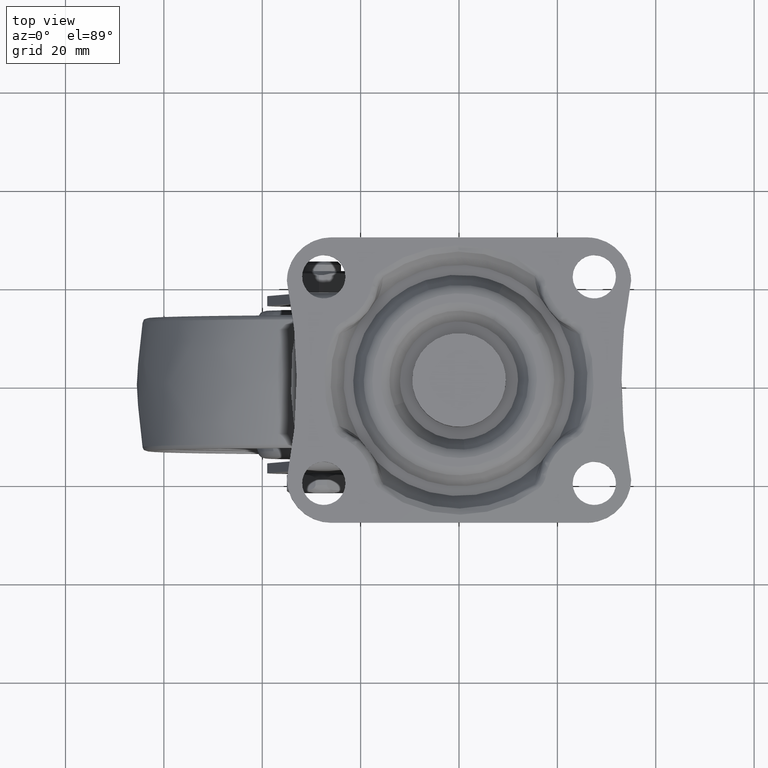
[diagram: clean part render]
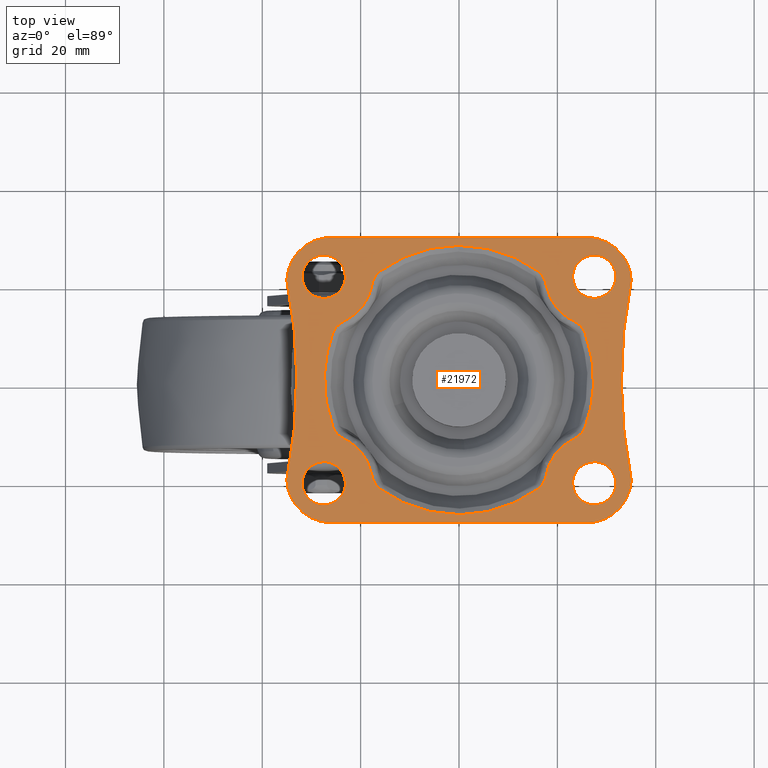
[diagram: same view with one face highlighted and labeled with its STEP entity id]
A machine part, top view. The second image highlights one B-rep face of the part: STEP entity #21972.
In plain terms, the highlighted face is a freeform B-spline surface patch.
Its self-contained STEP definition (entity closure, byte-faithful):
#10020=CARTESIAN_POINT('',(-26.953836778245702,16.634028559964811,-1.450307E-017));
#10021=VERTEX_POINT('',#10020);
#10027=CARTESIAN_POINT('',(-23.099999900000000,21.0,0.0));
#10028=VERTEX_POINT('',#10027);
#10029=CARTESIAN_POINT('',(-26.953836778245702,16.634028559964808,-1.450307E-017));
#10030=CARTESIAN_POINT('',(-23.099999900000007,17.116126071410257,0.0));
#10031=CARTESIAN_POINT('',(-23.099999900000000,21.0,0.0));
#10039=(BOUNDED_CURVE()B_SPLINE_CURVE(2,(#10029,#10030,#10031),.UNSPECIFIED.,.F.,.U.)B_SPLINE_CURVE_WITH_KNOTS((3,3),(0.271473928985399,0.500000000000000),.UNSPECIFIED.)CURVE()GEOMETRIC_REPRESENTATION_ITEM()RATIONAL_B_SPLINE_CURVE((0.954005430246196,0.732265053910968,1.0))REPRESENTATION_ITEM(''));
#10040=EDGE_CURVE('',#10021,#10028,#10039,.T.);
#10042=CARTESIAN_POINT('',(-27.538396757451370,25.399832561475179,-1.040834E-017));
#10043=VERTEX_POINT('',#10042);
#10044=CARTESIAN_POINT('',(-23.099999900000000,21.0,0.0));
#10045=CARTESIAN_POINT('',(-23.099999900000011,25.400000099999993,0.0));
#10046=CARTESIAN_POINT('',(-27.500000000000000,25.400000100000000,0.0));
#10047=CARTESIAN_POINT('',(-27.519198744433332,25.400000099999993,0.0));
#10048=CARTESIAN_POINT('',(-27.538396757451373,25.399832561475179,-1.040834E-017));
#10056=(BOUNDED_CURVE()B_SPLINE_CURVE(2,(#10044,#10045,#10046,#10047,#10048),.UNSPECIFIED.,.F.,.U.)B_SPLINE_CURVE_WITH_KNOTS((3,2,3),(0.500000000000000,0.750000000000000,0.751539894365884),.UNSPECIFIED.)CURVE()GEOMETRIC_REPRESENTATION_ITEM()RATIONAL_B_SPLINE_CURVE((1.0,0.707106781186548,1.0,0.998195901530174,0.996414028028901))REPRESENTATION_ITEM(''));
#10057=EDGE_CURVE('',#10028,#10043,#10056,.T.);
#10137=CARTESIAN_POINT('',(-31.900000099999989,21.0,0.0));
#10138=VERTEX_POINT('',#10137);
#10139=CARTESIAN_POINT('',(-27.538396757451373,25.399832561475176,-1.040834E-017));
#10140=CARTESIAN_POINT('',(-31.900000099999989,25.361769424983923,0.0));
#10141=CARTESIAN_POINT('',(-31.900000099999989,21.0,0.0));
#10149=(BOUNDED_CURVE()B_SPLINE_CURVE(2,(#10139,#10140,#10141),.UNSPECIFIED.,.F.,.U.)B_SPLINE_CURVE_WITH_KNOTS((3,3),(0.751539894365883,1.0),.UNSPECIFIED.)CURVE()GEOMETRIC_REPRESENTATION_ITEM()RATIONAL_B_SPLINE_CURVE((0.996414028028903,0.708910879656373,1.0))REPRESENTATION_ITEM(''));
#10150=EDGE_CURVE('',#10043,#10138,#10149,.T.);
#10152=CARTESIAN_POINT('',(-31.900000099999989,21.0,0.0));
#10153=CARTESIAN_POINT('',(-31.900000099999993,16.599999900000011,0.0));
#10154=CARTESIAN_POINT('',(-27.500000000000000,16.599999900000011,0.0));
#10155=CARTESIAN_POINT('',(-27.225858312429651,16.599999900000014,0.0));
#10156=CARTESIAN_POINT('',(-26.953836778245702,16.634028559964808,-1.450307E-017));
#10164=(BOUNDED_CURVE()B_SPLINE_CURVE(2,(#10152,#10153,#10154,#10155,#10156),.UNSPECIFIED.,.F.,.U.)B_SPLINE_CURVE_WITH_KNOTS((3,2,3),(0.0,0.250000000000000,0.271473928985399),.UNSPECIFIED.)CURVE()GEOMETRIC_REPRESENTATION_ITEM()RATIONAL_B_SPLINE_CURVE((1.0,0.707106781186548,1.0,0.974841727275580,0.954005430246196))REPRESENTATION_ITEM(''));
#10165=EDGE_CURVE('',#10138,#10021,#10164,.T.);
#10206=CARTESIAN_POINT('',(28.046153221754299,16.634028559964818,-1.450307E-017));
#10207=VERTEX_POINT('',#10206);
#10213=CARTESIAN_POINT('',(31.899990099999989,21.0,0.0));
#10214=VERTEX_POINT('',#10213);
#10215=CARTESIAN_POINT('',(28.046153221754299,16.634028559964811,-1.450307E-017));
#10216=CARTESIAN_POINT('',(31.899990099999993,17.116126071410271,0.0));
#10217=CARTESIAN_POINT('',(31.899990099999989,21.0,0.0));
#10225=(BOUNDED_CURVE()B_SPLINE_CURVE(2,(#10215,#10216,#10217),.UNSPECIFIED.,.F.,.U.)B_SPLINE_CURVE_WITH_KNOTS((3,3),(0.271473928985399,0.500000000000000),.UNSPECIFIED.)CURVE()GEOMETRIC_REPRESENTATION_ITEM()RATIONAL_B_SPLINE_CURVE((0.954005430246196,0.732265053910968,1.0))REPRESENTATION_ITEM(''));
#10226=EDGE_CURVE('',#10207,#10214,#10225,.T.);
#10228=CARTESIAN_POINT('',(27.461593242548620,25.399832561475169,-1.040834E-017));
#10229=VERTEX_POINT('',#10228);
#10230=CARTESIAN_POINT('',(31.899990099999989,21.0,0.0));
#10231=CARTESIAN_POINT('',(31.899990099999997,25.400000099999993,0.0));
#10232=CARTESIAN_POINT('',(27.499990000000000,25.400000100000000,0.0));
#10233=CARTESIAN_POINT('',(27.480791255566668,25.400000099999993,0.0));
#10234=CARTESIAN_POINT('',(27.461593242548624,25.399832561475172,-1.040834E-017));
#10242=(BOUNDED_CURVE()B_SPLINE_CURVE(2,(#10230,#10231,#10232,#10233,#10234),.UNSPECIFIED.,.F.,.U.)B_SPLINE_CURVE_WITH_KNOTS((3,2,3),(0.500000000000000,0.750000000000000,0.751539894365884),.UNSPECIFIED.)CURVE()GEOMETRIC_REPRESENTATION_ITEM()RATIONAL_B_SPLINE_CURVE((1.0,0.707106781186548,1.0,0.998195901530174,0.996414028028901))REPRESENTATION_ITEM(''));
#10243=EDGE_CURVE('',#10214,#10229,#10242,.T.);
#10323=CARTESIAN_POINT('',(23.099989900000001,21.0,0.0));
#10324=VERTEX_POINT('',#10323);
#10325=CARTESIAN_POINT('',(27.461593242548627,25.399832561475176,-1.040834E-017));
#10326=CARTESIAN_POINT('',(23.099989899999990,25.361769424983908,0.0));
#10327=CARTESIAN_POINT('',(23.099989900000001,21.0,0.0));
#10335=(BOUNDED_CURVE()B_SPLINE_CURVE(2,(#10325,#10326,#10327),.UNSPECIFIED.,.F.,.U.)B_SPLINE_CURVE_WITH_KNOTS((3,3),(0.751539894365883,1.0),.UNSPECIFIED.)CURVE()GEOMETRIC_REPRESENTATION_ITEM()RATIONAL_B_SPLINE_CURVE((0.996414028028903,0.708910879656373,1.0))REPRESENTATION_ITEM(''));
#10336=EDGE_CURVE('',#10229,#10324,#10335,.T.);
#10338=CARTESIAN_POINT('',(23.099989900000001,21.0,0.0));
#10339=CARTESIAN_POINT('',(23.099989900000004,16.599999900000011,0.0));
#10340=CARTESIAN_POINT('',(27.499990000000000,16.599999900000011,0.0));
#10341=CARTESIAN_POINT('',(27.774131687570346,16.599999900000011,0.0));
#10342=CARTESIAN_POINT('',(28.046153221754299,16.634028559964811,-1.450307E-017));
#10350=(BOUNDED_CURVE()B_SPLINE_CURVE(2,(#10338,#10339,#10340,#10341,#10342),.UNSPECIFIED.,.F.,.U.)B_SPLINE_CURVE_WITH_KNOTS((3,2,3),(0.0,0.250000000000000,0.271473928985399),.UNSPECIFIED.)CURVE()GEOMETRIC_REPRESENTATION_ITEM()RATIONAL_B_SPLINE_CURVE((1.0,0.707106781186548,1.0,0.974841727275580,0.954005430246196))REPRESENTATION_ITEM(''));
#10351=EDGE_CURVE('',#10324,#10207,#10350,.T.);
#10578=CARTESIAN_POINT('',(28.046153221754299,-25.365971440035189,-1.450307E-017));
#10579=VERTEX_POINT('',#10578);
#10585=CARTESIAN_POINT('',(31.899990099999989,-21.0,0.0));
#10586=VERTEX_POINT('',#10585);
#10587=CARTESIAN_POINT('',(28.046153221754299,-25.365971440035196,-1.450307E-017));
#10588=CARTESIAN_POINT('',(31.899990099999993,-24.883873928589740,0.0));
#10589=CARTESIAN_POINT('',(31.899990099999989,-21.0,0.0));
#10597=(BOUNDED_CURVE()B_SPLINE_CURVE(2,(#10587,#10588,#10589),.UNSPECIFIED.,.F.,.U.)B_SPLINE_CURVE_WITH_KNOTS((3,3),(0.271473928985399,0.500000000000000),.UNSPECIFIED.)CURVE()GEOMETRIC_REPRESENTATION_ITEM()RATIONAL_B_SPLINE_CURVE((0.954005430246196,0.732265053910968,1.0))REPRESENTATION_ITEM(''));
#10598=EDGE_CURVE('',#10579,#10586,#10597,.T.);
#10600=CARTESIAN_POINT('',(27.461593242548620,-16.600167438524831,-1.040834E-017));
#10601=VERTEX_POINT('',#10600);
#10602=CARTESIAN_POINT('',(31.899990099999989,-21.0,0.0));
#10603=CARTESIAN_POINT('',(31.899990099999997,-16.599999900000011,0.0));
#10604=CARTESIAN_POINT('',(27.499990000000000,-16.599999900000011,0.0));
#10605=CARTESIAN_POINT('',(27.480791255566668,-16.599999900000011,0.0));
#10606=CARTESIAN_POINT('',(27.461593242548624,-16.600167438524824,-1.040834E-017));
#10614=(BOUNDED_CURVE()B_SPLINE_CURVE(2,(#10602,#10603,#10604,#10605,#10606),.UNSPECIFIED.,.F.,.U.)B_SPLINE_CURVE_WITH_KNOTS((3,2,3),(0.500000000000000,0.750000000000000,0.751539894365884),.UNSPECIFIED.)CURVE()GEOMETRIC_REPRESENTATION_ITEM()RATIONAL_B_SPLINE_CURVE((1.0,0.707106781186548,1.0,0.998195901530174,0.996414028028901))REPRESENTATION_ITEM(''));
#10615=EDGE_CURVE('',#10586,#10601,#10614,.T.);
#10695=CARTESIAN_POINT('',(23.099989900000001,-21.0,0.0));
#10696=VERTEX_POINT('',#10695);
#10697=CARTESIAN_POINT('',(27.461593242548624,-16.600167438524828,-1.040834E-017));
#10698=CARTESIAN_POINT('',(23.099989900000004,-16.638230575016085,0.0));
#10699=CARTESIAN_POINT('',(23.099989900000001,-21.0,0.0));
#10707=(BOUNDED_CURVE()B_SPLINE_CURVE(2,(#10697,#10698,#10699),.UNSPECIFIED.,.F.,.U.)B_SPLINE_CURVE_WITH_KNOTS((3,3),(0.751539894365883,1.0),.UNSPECIFIED.)CURVE()GEOMETRIC_REPRESENTATION_ITEM()RATIONAL_B_SPLINE_CURVE((0.996414028028903,0.708910879656373,1.0))REPRESENTATION_ITEM(''));
#10708=EDGE_CURVE('',#10601,#10696,#10707,.T.);
#10710=CARTESIAN_POINT('',(23.099989900000001,-21.0,0.0));
#10711=CARTESIAN_POINT('',(23.099989900000004,-25.400000099999993,0.0));
#10712=CARTESIAN_POINT('',(27.499990000000000,-25.400000100000000,0.0));
#10713=CARTESIAN_POINT('',(27.774131687570346,-25.400000100000000,0.0));
#10714=CARTESIAN_POINT('',(28.046153221754299,-25.365971440035196,-1.450307E-017));
#10722=(BOUNDED_CURVE()B_SPLINE_CURVE(2,(#10710,#10711,#10712,#10713,#10714),.UNSPECIFIED.,.F.,.U.)B_SPLINE_CURVE_WITH_KNOTS((3,2,3),(0.0,0.250000000000000,0.271473928985399),.UNSPECIFIED.)CURVE()GEOMETRIC_REPRESENTATION_ITEM()RATIONAL_B_SPLINE_CURVE((1.0,0.707106781186548,1.0,0.974841727275580,0.954005430246196))REPRESENTATION_ITEM(''));
#10723=EDGE_CURVE('',#10696,#10579,#10722,.T.);
#10764=CARTESIAN_POINT('',(-26.953836778245702,-25.365971440035189,-1.450307E-017));
#10765=VERTEX_POINT('',#10764);
#10771=CARTESIAN_POINT('',(-23.099999900000000,-21.0,0.0));
#10772=VERTEX_POINT('',#10771);
#10773=CARTESIAN_POINT('',(-26.953836778245702,-25.365971440035189,-1.450307E-017));
#10774=CARTESIAN_POINT('',(-23.099999900000007,-24.883873928589743,0.0));
#10775=CARTESIAN_POINT('',(-23.099999900000000,-21.0,0.0));
#10783=(BOUNDED_CURVE()B_SPLINE_CURVE(2,(#10773,#10774,#10775),.UNSPECIFIED.,.F.,.U.)B_SPLINE_CURVE_WITH_KNOTS((3,3),(0.271473928985399,0.500000000000000),.UNSPECIFIED.)CURVE()GEOMETRIC_REPRESENTATION_ITEM()RATIONAL_B_SPLINE_CURVE((0.954005430246196,0.732265053910968,1.0))REPRESENTATION_ITEM(''));
#10784=EDGE_CURVE('',#10765,#10772,#10783,.T.);
#10786=CARTESIAN_POINT('',(-27.538396757451370,-16.600167438524831,-1.040834E-017));
#10787=VERTEX_POINT('',#10786);
#10788=CARTESIAN_POINT('',(-23.099999900000000,-21.0,0.0));
#10789=CARTESIAN_POINT('',(-23.099999900000011,-16.599999900000011,0.0));
#10790=CARTESIAN_POINT('',(-27.500000000000000,-16.599999900000011,0.0));
#10791=CARTESIAN_POINT('',(-27.519198744433332,-16.599999900000011,0.0));
#10792=CARTESIAN_POINT('',(-27.538396757451373,-16.600167438524824,-1.040834E-017));
#10800=(BOUNDED_CURVE()B_SPLINE_CURVE(2,(#10788,#10789,#10790,#10791,#10792),.UNSPECIFIED.,.F.,.U.)B_SPLINE_CURVE_WITH_KNOTS((3,2,3),(0.500000000000000,0.750000000000000,0.751539894365884),.UNSPECIFIED.)CURVE()GEOMETRIC_REPRESENTATION_ITEM()RATIONAL_B_SPLINE_CURVE((1.0,0.707106781186548,1.0,0.998195901530174,0.996414028028901))REPRESENTATION_ITEM(''));
#10801=EDGE_CURVE('',#10772,#10787,#10800,.T.);
#10881=CARTESIAN_POINT('',(-31.900000099999989,-21.0,0.0));
#10882=VERTEX_POINT('',#10881);
#10883=CARTESIAN_POINT('',(-27.538396757451373,-16.600167438524828,-1.040834E-017));
#10884=CARTESIAN_POINT('',(-31.900000099999989,-16.638230575016085,0.0));
#10885=CARTESIAN_POINT('',(-31.900000099999989,-21.0,0.0));
#10893=(BOUNDED_CURVE()B_SPLINE_CURVE(2,(#10883,#10884,#10885),.UNSPECIFIED.,.F.,.U.)B_SPLINE_CURVE_WITH_KNOTS((3,3),(0.751539894365883,1.0),.UNSPECIFIED.)CURVE()GEOMETRIC_REPRESENTATION_ITEM()RATIONAL_B_SPLINE_CURVE((0.996414028028903,0.708910879656373,1.0))REPRESENTATION_ITEM(''));
#10894=EDGE_CURVE('',#10787,#10882,#10893,.T.);
#10896=CARTESIAN_POINT('',(-31.900000099999989,-21.0,0.0));
#10897=CARTESIAN_POINT('',(-31.900000099999993,-25.400000099999993,0.0));
#10898=CARTESIAN_POINT('',(-27.500000000000000,-25.400000100000000,0.0));
#10899=CARTESIAN_POINT('',(-27.225858312429651,-25.400000099999993,0.0));
#10900=CARTESIAN_POINT('',(-26.953836778245702,-25.365971440035189,-1.450307E-017));
#10908=(BOUNDED_CURVE()B_SPLINE_CURVE(2,(#10896,#10897,#10898,#10899,#10900),.UNSPECIFIED.,.F.,.U.)B_SPLINE_CURVE_WITH_KNOTS((3,2,3),(0.0,0.250000000000000,0.271473928985399),.UNSPECIFIED.)CURVE()GEOMETRIC_REPRESENTATION_ITEM()RATIONAL_B_SPLINE_CURVE((1.0,0.707106781186548,1.0,0.974841727275580,0.954005430246196))REPRESENTATION_ITEM(''));
#10909=EDGE_CURVE('',#10882,#10765,#10908,.T.);
#18303=CARTESIAN_POINT('',(-34.996665220768847,20.244611880344650,0.0));
#18304=VERTEX_POINT('',#18303);
#18325=CARTESIAN_POINT('',(-34.996665220768747,-20.244611880344198,0.0));
#18326=VERTEX_POINT('',#18325);
#18332=CARTESIAN_POINT('',(-34.996665220768847,-20.244611880344181,0.0));
#18333=CARTESIAN_POINT('',(-30.957251078704829,2.146061E-013,0.0));
#18334=CARTESIAN_POINT('',(-34.996665220768939,20.244611880344610,0.0));
#18342=(BOUNDED_CURVE()B_SPLINE_CURVE(2,(#18332,#18333,#18334),.UNSPECIFIED.,.F.,.U.)CURVE()GEOMETRIC_REPRESENTATION_ITEM()QUASI_UNIFORM_CURVE()RATIONAL_B_SPLINE_CURVE((1.0,0.980669150357168,1.0))REPRESENTATION_ITEM(''));
#18343=EDGE_CURVE('',#18326,#18304,#18342,.T.);
#18364=CARTESIAN_POINT('',(-25.999990000000000,-29.0,0.0));
#18365=VERTEX_POINT('',#18364);
#18371=CARTESIAN_POINT('',(-34.996665220768762,-20.244611880344198,0.0));
#18372=CARTESIAN_POINT('',(-34.758613729685891,-29.000000000000004,0.0));
#18373=CARTESIAN_POINT('',(-25.999990000000000,-29.0,0.0));
#18381=(BOUNDED_CURVE()B_SPLINE_CURVE(2,(#18371,#18372,#18373),.UNSPECIFIED.,.F.,.U.)CURVE()GEOMETRIC_REPRESENTATION_ITEM()QUASI_UNIFORM_CURVE()RATIONAL_B_SPLINE_CURVE((1.0,0.716651623111265,1.0))REPRESENTATION_ITEM(''));
#18382=EDGE_CURVE('',#18326,#18365,#18381,.T.);
#18413=CARTESIAN_POINT('',(25.999993141592750,-28.999999999999449,0.0));
#18414=VERTEX_POINT('',#18413);
#18420=CARTESIAN_POINT('',(25.999993141592750,-28.999999999999449,0.0));
#18421=CARTESIAN_POINT('',(-25.999990000000000,-29.0,0.0));
#18422=QUASI_UNIFORM_CURVE('',1,(#18420,#18421),.UNSPECIFIED.,.F.,.U.);
#18423=EDGE_CURVE('',#18414,#18365,#18422,.T.);
#18445=CARTESIAN_POINT('',(34.996665220768847,-20.244611880344600,0.0));
#18446=VERTEX_POINT('',#18445);
#18452=CARTESIAN_POINT('',(25.999993141592750,-28.999999999999449,0.0));
#18453=CARTESIAN_POINT('',(34.758613812811845,-28.999996942663991,0.0));
#18454=CARTESIAN_POINT('',(34.996665220768847,-20.244611880344600,0.0));
#18462=(BOUNDED_CURVE()B_SPLINE_CURVE(2,(#18452,#18453,#18454),.UNSPECIFIED.,.F.,.U.)CURVE()GEOMETRIC_REPRESENTATION_ITEM()QUASI_UNIFORM_CURVE()RATIONAL_B_SPLINE_CURVE((1.0,0.716651744836003,1.0))REPRESENTATION_ITEM(''));
#18463=EDGE_CURVE('',#18414,#18446,#18462,.T.);
#18511=CARTESIAN_POINT('',(34.996665220768747,20.244611880344198,0.0));
#18512=VERTEX_POINT('',#18511);
#18518=CARTESIAN_POINT('',(34.996665220768747,20.244611880344198,0.0));
#18519=CARTESIAN_POINT('',(30.957251078704825,-1.627309E-013,0.0));
#18520=CARTESIAN_POINT('',(34.996665220768847,-20.244611880344600,0.0));
#18528=(BOUNDED_CURVE()B_SPLINE_CURVE(2,(#18518,#18519,#18520),.UNSPECIFIED.,.F.,.U.)CURVE()GEOMETRIC_REPRESENTATION_ITEM()QUASI_UNIFORM_CURVE()RATIONAL_B_SPLINE_CURVE((1.0,0.980669150357169,1.0))REPRESENTATION_ITEM(''));
#18529=EDGE_CURVE('',#18512,#18446,#18528,.T.);
#18551=CARTESIAN_POINT('',(25.999992827433399,28.999999999999549,0.0));
#18552=VERTEX_POINT('',#18551);
#18558=CARTESIAN_POINT('',(34.996665220768762,20.244611880344198,0.0));
#18559=CARTESIAN_POINT('',(34.758613804499589,28.999997248397619,0.0));
#18560=CARTESIAN_POINT('',(25.999992827433399,28.999999999999549,0.0));
#18568=(BOUNDED_CURVE()B_SPLINE_CURVE(2,(#18558,#18559,#18560),.UNSPECIFIED.,.F.,.U.)CURVE()GEOMETRIC_REPRESENTATION_ITEM()QUASI_UNIFORM_CURVE()RATIONAL_B_SPLINE_CURVE((1.0,0.716651732663513,1.0))REPRESENTATION_ITEM(''));
#18569=EDGE_CURVE('',#18512,#18552,#18568,.T.);
#18600=CARTESIAN_POINT('',(-25.999990000000000,29.0,0.0));
#18601=VERTEX_POINT('',#18600);
#18607=CARTESIAN_POINT('',(-25.999990000000000,29.0,0.0));
#18608=CARTESIAN_POINT('',(25.999992827433399,28.999999999999549,0.0));
#18609=QUASI_UNIFORM_CURVE('',1,(#18607,#18608),.UNSPECIFIED.,.F.,.U.);
#18610=EDGE_CURVE('',#18601,#18552,#18609,.T.);
#18631=CARTESIAN_POINT('',(-25.999990000000000,29.0,0.0));
#18632=CARTESIAN_POINT('',(-34.758613729685443,29.000000000000004,0.0));
#18633=CARTESIAN_POINT('',(-34.996665220768740,20.244611880344650,0.0));
#18641=(BOUNDED_CURVE()B_SPLINE_CURVE(2,(#18631,#18632,#18633),.UNSPECIFIED.,.F.,.U.)CURVE()GEOMETRIC_REPRESENTATION_ITEM()QUASI_UNIFORM_CURVE()RATIONAL_B_SPLINE_CURVE((1.0,0.716651623111283,1.0))REPRESENTATION_ITEM(''));
#18642=EDGE_CURVE('',#18601,#18304,#18641,.T.);
#18902=CARTESIAN_POINT('',(-25.591212590839000,-9.715728735231270,0.0));
#18903=VERTEX_POINT('',#18902);
#18904=CARTESIAN_POINT('',(-23.170474890031201,-12.096898613283740,0.0));
#18905=VERTEX_POINT('',#18904);
#18906=CARTESIAN_POINT('',(-25.591212590839000,-9.715728735231270,0.0));
#18907=CARTESIAN_POINT('',(-25.565182702811811,-9.784291415023242,0.0));
#18908=CARTESIAN_POINT('',(-25.536709832404579,-9.851804138086944,0.0));
#18909=CARTESIAN_POINT('',(-25.475167638890522,-9.984854098644947,0.0));
#18910=CARTESIAN_POINT('',(-25.442148249014270,-10.050258242234991,0.0));
#18911=CARTESIAN_POINT('',(-25.337513298018621,-10.242072836035240,0.0));
#18912=CARTESIAN_POINT('',(-25.260105726351600,-10.364643127830741,0.0));
#18913=CARTESIAN_POINT('',(-25.091959404021090,-10.600538227247069,0.0));
#18914=CARTESIAN_POINT('',(-25.001208519785379,-10.713854619951990,0.0));
#18915=CARTESIAN_POINT('',(-24.855984655612829,-10.877519853928630,0.0));
#18916=CARTESIAN_POINT('',(-24.805960628355969,-10.931105387296890,0.0));
#18917=CARTESIAN_POINT('',(-24.704089588477810,-11.035150971774550,0.0));
#18918=CARTESIAN_POINT('',(-24.652128740227010,-11.085748899533289,0.0));
#18919=CARTESIAN_POINT('',(-24.387568897670651,-11.332129838167329,0.0));
#18920=CARTESIAN_POINT('',(-24.160888674477789,-11.508344635965431,0.0));
#18921=CARTESIAN_POINT('',(-23.683304163680141,-11.827110859010650,0.0));
#18922=CARTESIAN_POINT('',(-23.432327257452599,-11.969561368585250,0.0));
#18923=CARTESIAN_POINT('',(-23.170474890031201,-12.096898613283740,0.0));
#18924=B_SPLINE_CURVE_WITH_KNOTS('',3,(#18906,#18907,#18908,#18909,#18910,#18911,#18912,#18913,#18914,#18915,#18916,#18917,#18918,#18919,#18920,#18921,#18922,#18923),.UNSPECIFIED.,.F.,.U.,(4,2,2,2,2,2,2,2,4),(0.0,0.062500000000000,0.124999999999999,0.249999999999999,0.375000000000000,0.437499999999999,0.499999999999999,0.749999999999999,1.0),.UNSPECIFIED.);
#18925=EDGE_CURVE('',#18903,#18905,#18924,.T.);
#18976=CARTESIAN_POINT('',(-25.591212590838950,9.715728735231290,0.0));
#18977=VERTEX_POINT('',#18976);
#18991=CARTESIAN_POINT('',(-25.591212590838989,-9.715728735231279,0.0));
#18992=CARTESIAN_POINT('',(-29.279798449032743,8.340550E-015,0.0));
#18993=CARTESIAN_POINT('',(-25.591212590838978,9.715728735231286,0.0));
#19001=(BOUNDED_CURVE()B_SPLINE_CURVE(2,(#18991,#18992,#18993),.UNSPECIFIED.,.F.,.U.)CURVE()GEOMETRIC_REPRESENTATION_ITEM()QUASI_UNIFORM_CURVE()RATIONAL_B_SPLINE_CURVE((1.0,0.934891886720673,1.0))REPRESENTATION_ITEM(''));
#19002=EDGE_CURVE('',#18903,#18977,#19001,.T.);
#19038=CARTESIAN_POINT('',(-17.771067118333800,-19.167551647649450,0.0));
#19039=VERTEX_POINT('',#19038);
#19069=CARTESIAN_POINT('',(-17.771067118333800,-19.167551647649450,0.0));
#19070=CARTESIAN_POINT('',(-18.692690706822237,-14.274418357936954,0.0));
#19071=CARTESIAN_POINT('',(-23.170474890031180,-12.096898613283710,0.0));
#19079=(BOUNDED_CURVE()B_SPLINE_CURVE(2,(#19069,#19070,#19071),.UNSPECIFIED.,.F.,.U.)CURVE()GEOMETRIC_REPRESENTATION_ITEM()QUASI_UNIFORM_CURVE()RATIONAL_B_SPLINE_CURVE((1.0,0.893371763774231,1.0))REPRESENTATION_ITEM(''));
#19080=EDGE_CURVE('',#19039,#18905,#19079,.T.);
#19155=CARTESIAN_POINT('',(-23.170474890031201,12.096898613283759,0.0));
#19156=VERTEX_POINT('',#19155);
#19170=CARTESIAN_POINT('',(-23.170474890031201,12.096898613283759,0.0));
#19171=CARTESIAN_POINT('',(-23.301308137076120,12.033275185480861,0.0));
#19172=CARTESIAN_POINT('',(-23.429871953215830,11.965630754009050,0.0));
#19173=CARTESIAN_POINT('',(-23.682141751739419,11.821734725581610,0.0));
#19174=CARTESIAN_POINT('',(-23.806060675906721,11.745342293971930,0.0));
#19175=CARTESIAN_POINT('',(-24.168370768676620,11.503008936132421,0.0));
#19176=CARTESIAN_POINT('',(-24.395879697373989,11.325207057278840,0.0));
#19177=CARTESIAN_POINT('',(-24.712081095606099,11.029485566275371,0.0));
#19178=CARTESIAN_POINT('',(-24.813276104857010,10.926042340020739,0.0));
#19179=CARTESIAN_POINT('',(-24.957844800936421,10.762513218145781,0.0));
#19180=CARTESIAN_POINT('',(-25.004802250918772,10.706611438570301,0.0));
#19181=CARTESIAN_POINT('',(-25.095126704138721,10.593076699941060,0.0));
#19182=CARTESIAN_POINT('',(-25.138624955480012,10.535300026765521,0.0));
#19183=CARTESIAN_POINT('',(-25.263909492382481,10.358809688479440,0.0));
#19184=CARTESIAN_POINT('',(-25.340512221157500,10.236951875750851,0.0));
#19185=CARTESIAN_POINT('',(-25.478182368915490,9.983813124572469,0.0));
#19186=CARTESIAN_POINT('',(-25.539270303388879,9.852544630035833,0.0));
#19187=CARTESIAN_POINT('',(-25.591212590838950,9.715728735231298,0.0));
#19188=B_SPLINE_CURVE_WITH_KNOTS('',3,(#19170,#19171,#19172,#19173,#19174,#19175,#19176,#19177,#19178,#19179,#19180,#19181,#19182,#19183,#19184,#19185,#19186,#19187),.UNSPECIFIED.,.F.,.U.,(4,2,2,2,2,2,2,2,4),(0.0,0.124999999999998,0.249999999999996,0.499999999999993,0.624999999999993,0.687499999999994,0.749999999999994,0.874999999999997,1.0),.UNSPECIFIED.);
#19189=EDGE_CURVE('',#19156,#18977,#19188,.T.);
#19280=CARTESIAN_POINT('',(-16.111335525958850,-22.129853463050551,0.0));
#19281=VERTEX_POINT('',#19280);
#19315=CARTESIAN_POINT('',(-17.771067118333800,-19.167551647649450,0.0));
#19316=CARTESIAN_POINT('',(-17.744138842717639,-19.310520689997940,0.0));
#19317=CARTESIAN_POINT('',(-17.712733893616001,-19.452359165389751,0.0));
#19318=CARTESIAN_POINT('',(-17.640341445214140,-19.733616079364690,0.0));
#19319=CARTESIAN_POINT('',(-17.599274151277669,-19.873277028605180,0.0));
#19320=CARTESIAN_POINT('',(-17.460893051625209,-20.286610708461641,0.0));
#19321=CARTESIAN_POINT('',(-17.349271435167459,-20.552908353025469,0.0));
#19322=CARTESIAN_POINT('',(-17.147245265765630,-20.935818200590241,0.0));
#19323=CARTESIAN_POINT('',(-17.074098304264091,-21.060679936035299,0.0));
#19324=CARTESIAN_POINT('',(-16.954406632243590,-21.243206058100679,0.0));
#19325=CARTESIAN_POINT('',(-16.912842030612559,-21.303226012780801,0.0));
#19326=CARTESIAN_POINT('',(-16.827097332981179,-21.420258019314051,0.0));
#19327=CARTESIAN_POINT('',(-16.782813153584740,-21.477434529247461,0.0));
#19328=CARTESIAN_POINT('',(-16.645539910350731,-21.644769855425810,0.0));
#19329=CARTESIAN_POINT('',(-16.548152761922921,-21.750755929510461,0.0));
#19330=CARTESIAN_POINT('',(-16.340197244253002,-21.950222216392451,0.0));
#19331=CARTESIAN_POINT('',(-16.229646281758050,-22.043718944076261,0.0));
#19332=CARTESIAN_POINT('',(-16.111335525958850,-22.129853463050551,0.0));
#19333=B_SPLINE_CURVE_WITH_KNOTS('',3,(#19315,#19316,#19317,#19318,#19319,#19320,#19321,#19322,#19323,#19324,#19325,#19326,#19327,#19328,#19329,#19330,#19331,#19332),.UNSPECIFIED.,.F.,.U.,(4,2,2,2,2,2,2,2,4),(0.0,0.124999999999998,0.249999999999996,0.499999999999993,0.624999999999992,0.687499999999993,0.749999999999993,0.874999999999997,1.0),.UNSPECIFIED.);
#19334=EDGE_CURVE('',#19039,#19281,#19333,.T.);
#19507=CARTESIAN_POINT('',(-17.771067118333800,19.167551647649400,0.0));
#19508=VERTEX_POINT('',#19507);
#19522=CARTESIAN_POINT('',(-23.170474890031180,12.096898613283710,0.0));
#19523=CARTESIAN_POINT('',(-18.692690706822269,14.274418357936947,0.0));
#19524=CARTESIAN_POINT('',(-17.771067118333800,19.167551647649400,0.0));
#19532=(BOUNDED_CURVE()B_SPLINE_CURVE(2,(#19522,#19523,#19524),.UNSPECIFIED.,.F.,.U.)CURVE()GEOMETRIC_REPRESENTATION_ITEM()QUASI_UNIFORM_CURVE()RATIONAL_B_SPLINE_CURVE((1.0,0.893371763774232,1.0))REPRESENTATION_ITEM(''));
#19533=EDGE_CURVE('',#19156,#19508,#19532,.T.);
#19569=CARTESIAN_POINT('',(16.111323922075801,-22.129861911093400,0.0));
#19570=VERTEX_POINT('',#19569);
#19600=CARTESIAN_POINT('',(16.111323922075819,-22.129861911093400,0.0));
#19601=CARTESIAN_POINT('',(-0.000008877180536,-33.859483297255878,0.0));
#19602=CARTESIAN_POINT('',(-16.111335525958850,-22.129853463050569,0.0));
#19610=(BOUNDED_CURVE()B_SPLINE_CURVE(2,(#19600,#19601,#19602),.UNSPECIFIED.,.F.,.U.)CURVE()GEOMETRIC_REPRESENTATION_ITEM()QUASI_UNIFORM_CURVE()RATIONAL_B_SPLINE_CURVE((1.0,0.808442520356912,1.0))REPRESENTATION_ITEM(''));
#19611=EDGE_CURVE('',#19570,#19281,#19610,.T.);
#19835=CARTESIAN_POINT('',(-16.111335525958850,22.129853463050551,0.0));
#19836=VERTEX_POINT('',#19835);
#19850=CARTESIAN_POINT('',(-16.111335525958850,22.129853463050551,0.0));
#19851=CARTESIAN_POINT('',(-16.170624707799870,22.086688789443699,0.0));
#19852=CARTESIAN_POINT('',(-16.228257719069600,22.041443810311339,0.0));
#19853=CARTESIAN_POINT('',(-16.340407669321571,21.947039773080480,0.0));
#19854=CARTESIAN_POINT('',(-16.394809359184190,21.897963931298200,0.0));
#19855=CARTESIAN_POINT('',(-16.552303355874830,21.746514426937789,0.0));
#19856=CARTESIAN_POINT('',(-16.650165915954840,21.639564308112199,0.0));
#19857=CARTESIAN_POINT('',(-16.833461561568669,21.415237782839490,0.0));
#19858=CARTESIAN_POINT('',(-16.918883334230092,21.297851886750561,0.0));
#19859=CARTESIAN_POINT('',(-17.038533801603329,21.114657877036279,0.0));
#19860=CARTESIAN_POINT('',(-17.077056429665632,21.052289457010389,0.0));
#19861=CARTESIAN_POINT('',(-17.150606485836111,20.926616939519580,0.0));
#19862=CARTESIAN_POINT('',(-17.185736950776828,20.863166719051339,0.0));
#19863=CARTESIAN_POINT('',(-17.353761585361450,20.543067985238871,0.0));
#19864=CARTESIAN_POINT('',(-17.464070335493201,20.277987698921379,0.0));
#19865=CARTESIAN_POINT('',(-17.645833935901020,19.733321871578479,0.0));
#19866=CARTESIAN_POINT('',(-17.717172310401331,19.453692846866709,0.0));
#19867=CARTESIAN_POINT('',(-17.771067118333800,19.167551647649400,0.0));
#19868=B_SPLINE_CURVE_WITH_KNOTS('',3,(#19850,#19851,#19852,#19853,#19854,#19855,#19856,#19857,#19858,#19859,#19860,#19861,#19862,#19863,#19864,#19865,#19866,#19867),.UNSPECIFIED.,.F.,.U.,(4,2,2,2,2,2,2,2,4),(0.0,0.062500000000000,0.125000000000001,0.250000000000002,0.375000000000003,0.437500000000003,0.500000000000003,0.750000000000001,1.0),.UNSPECIFIED.);
#19869=EDGE_CURVE('',#19836,#19508,#19868,.T.);
#19960=CARTESIAN_POINT('',(17.771055763994251,-19.167558838195500,0.0));
#19961=VERTEX_POINT('',#19960);
#19995=CARTESIAN_POINT('',(16.111323922075801,-22.129861911093400,0.0));
#19996=CARTESIAN_POINT('',(16.170613150160559,-22.086697251386038,0.0));
#19997=CARTESIAN_POINT('',(16.228246204613210,-22.041452283199039,0.0));
#19998=CARTESIAN_POINT('',(16.340396235693110,-21.947048262578221,0.0));
#19999=CARTESIAN_POINT('',(16.394797982309161,-21.897972409191969,0.0));
#20000=CARTESIAN_POINT('',(16.552292114994039,-21.746522880168619,0.0));
#20001=CARTESIAN_POINT('',(16.650154745030282,-21.639572739587990,0.0));
#20002=CARTESIAN_POINT('',(16.833450499145300,-21.415246165463561,0.0));
#20003=CARTESIAN_POINT('',(16.918872310259651,-21.297860242219851,0.0));
#20004=CARTESIAN_POINT('',(17.038522815573270,-21.114666189551489,0.0));
#20005=CARTESIAN_POINT('',(17.077045461900418,-21.052297740867591,0.0));
#20006=CARTESIAN_POINT('',(17.150595555942999,-20.926625147246099,0.0));
#20007=CARTESIAN_POINT('',(17.185726035253872,-20.863174888550070,0.0));
#20008=CARTESIAN_POINT('',(17.353750721159638,-20.543075963086910,0.0));
#20009=CARTESIAN_POINT('',(17.464059448483429,-20.277995522215360,0.0));
#20010=CARTESIAN_POINT('',(17.645822898112460,-19.733329382937701,0.0));
#20011=CARTESIAN_POINT('',(17.717161144271131,-19.453700200816019,0.0));
#20012=CARTESIAN_POINT('',(17.771055763994251,-19.167558838195500,0.0));
#20013=B_SPLINE_CURVE_WITH_KNOTS('',3,(#19995,#19996,#19997,#19998,#19999,#20000,#20001,#20002,#20003,#20004,#20005,#20006,#20007,#20008,#20009,#20010,#20011,#20012),.UNSPECIFIED.,.F.,.U.,(4,2,2,2,2,2,2,2,4),(0.0,0.062499999999999,0.124999999999998,0.249999999999997,0.374999999999997,0.437499999999997,0.499999999999997,0.749999999999998,1.0),.UNSPECIFIED.);
#20014=EDGE_CURVE('',#19570,#19961,#20013,.T.);
#20191=CARTESIAN_POINT('',(16.111323922075901,22.129861911093300,0.0));
#20192=VERTEX_POINT('',#20191);
#20206=CARTESIAN_POINT('',(-16.111335525958850,22.129853463050541,0.0));
#20207=CARTESIAN_POINT('',(-0.000008877180459,33.859483297255920,0.0));
#20208=CARTESIAN_POINT('',(16.111323922075911,22.129861911093300,0.0));
#20216=(BOUNDED_CURVE()B_SPLINE_CURVE(2,(#20206,#20207,#20208),.UNSPECIFIED.,.F.,.U.)CURVE()GEOMETRIC_REPRESENTATION_ITEM()QUASI_UNIFORM_CURVE()RATIONAL_B_SPLINE_CURVE((1.0,0.808442520356911,1.0))REPRESENTATION_ITEM(''));
#20217=EDGE_CURVE('',#19836,#20192,#20216,.T.);
#20253=CARTESIAN_POINT('',(23.170474593460099,-12.096893894570639,0.0));
#20254=VERTEX_POINT('',#20253);
#20284=CARTESIAN_POINT('',(23.170474593460099,-12.096893894570631,0.0));
#20285=CARTESIAN_POINT('',(18.692677835663901,-14.274413719748329,0.0));
#20286=CARTESIAN_POINT('',(17.771055763994259,-19.167558838195500,0.0));
#20294=(BOUNDED_CURVE()B_SPLINE_CURVE(2,(#20284,#20285,#20286),.UNSPECIFIED.,.F.,.U.)CURVE()GEOMETRIC_REPRESENTATION_ITEM()QUASI_UNIFORM_CURVE()RATIONAL_B_SPLINE_CURVE((1.0,0.893371352876438,1.0))REPRESENTATION_ITEM(''));
#20295=EDGE_CURVE('',#20254,#19961,#20294,.T.);
#20523=CARTESIAN_POINT('',(17.771055763994301,19.167558838195450,0.0));
#20524=VERTEX_POINT('',#20523);
#20538=CARTESIAN_POINT('',(17.771055763994301,19.167558838195450,0.0));
#20539=CARTESIAN_POINT('',(17.744130387980530,19.310513066673789,0.0));
#20540=CARTESIAN_POINT('',(17.712731045205249,19.452327241324429,0.0));
#20541=CARTESIAN_POINT('',(17.640359783095679,19.733516311764561,0.0));
#20542=CARTESIAN_POINT('',(17.599334489842601,19.873058538176871,0.0));
#20543=CARTESIAN_POINT('',(17.460898283605129,20.286596378560908,0.0));
#20544=CARTESIAN_POINT('',(17.349252672206529,20.552920835662832,0.0));
#20545=CARTESIAN_POINT('',(17.147295601975529,20.935715530341529,0.0));
#20546=CARTESIAN_POINT('',(17.074189564026518,21.060512933638119,0.0));
#20547=CARTESIAN_POINT('',(16.954604764689648,21.242905128087109,0.0));
#20548=CARTESIAN_POINT('',(16.913021243748862,21.302966338437720,0.0));
#20549=CARTESIAN_POINT('',(16.827224480088589,21.420086092616209,0.0));
#20550=CARTESIAN_POINT('',(16.782915800657239,21.477300006293639,0.0));
#20551=CARTESIAN_POINT('',(16.645575942337889,21.644729274543401,0.0));
#20552=CARTESIAN_POINT('',(16.548153367377189,21.750753557362120,0.0));
#20553=CARTESIAN_POINT('',(16.340160645410439,21.950254309749329,0.0));
#20554=CARTESIAN_POINT('',(16.229607659383721,22.043747157456941,0.0));
#20555=CARTESIAN_POINT('',(16.111323922075901,22.129861911093300,0.0));
#20556=B_SPLINE_CURVE_WITH_KNOTS('',3,(#20538,#20539,#20540,#20541,#20542,#20543,#20544,#20545,#20546,#20547,#20548,#20549,#20550,#20551,#20552,#20553,#20554,#20555),.UNSPECIFIED.,.F.,.U.,(4,2,2,2,2,2,2,2,4),(0.0,0.124999999999999,0.249999999999999,0.499999999999997,0.624999999999999,0.687499999999999,0.749999999999999,0.875000000000000,1.0),.UNSPECIFIED.);
#20557=EDGE_CURVE('',#20524,#20192,#20556,.T.);
#20648=CARTESIAN_POINT('',(25.591214277004749,-9.715724293872340,0.0));
#20649=VERTEX_POINT('',#20648);
#20683=CARTESIAN_POINT('',(23.170474593460099,-12.096893894570639,0.0));
#20684=CARTESIAN_POINT('',(23.301253107874881,-12.033297259160690,0.0));
#20685=CARTESIAN_POINT('',(23.430158319713549,-11.965465405279421,0.0));
#20686=CARTESIAN_POINT('',(23.682023547071850,-11.821795399263390,0.0));
#20687=CARTESIAN_POINT('',(23.805013838790860,-11.745967941279449,0.0));
#20688=CARTESIAN_POINT('',(24.164558156782530,-11.505694613254610,0.0));
#20689=CARTESIAN_POINT('',(24.391832917755259,-11.328657650389280,0.0));
#20690=CARTESIAN_POINT('',(24.709717150324028,-11.031855493230131,0.0));
#20691=CARTESIAN_POINT('',(24.812073407072500,-10.927277518145459,0.0));
#20692=CARTESIAN_POINT('',(25.004047516359840,-10.710369075641919,0.0));
#20693=CARTESIAN_POINT('',(25.094140199827208,-10.597660338657940,0.0));
#20694=CARTESIAN_POINT('',(25.261270482721059,-10.362819796685629,0.0));
#20695=CARTESIAN_POINT('',(25.338320741540901,-10.240697129158530,0.0));
#20696=CARTESIAN_POINT('',(25.442606136294248,-10.049364089840720,0.0));
#20697=CARTESIAN_POINT('',(25.475551765209360,-9.984058094639369,0.0));
#20698=CARTESIAN_POINT('',(25.536877103542530,-9.851406303254295,0.0));
#20699=CARTESIAN_POINT('',(25.565258696333029,-9.784091283977158,0.0));
#20700=CARTESIAN_POINT('',(25.591214277004749,-9.715724293872340,0.0));
#20701=B_SPLINE_CURVE_WITH_KNOTS('',3,(#20683,#20684,#20685,#20686,#20687,#20688,#20689,#20690,#20691,#20692,#20693,#20694,#20695,#20696,#20697,#20698,#20699,#20700),.UNSPECIFIED.,.F.,.U.,(4,2,2,2,2,2,2,2,4),(0.0,0.124999999999999,0.249999999999998,0.499999999999999,0.625000000000000,0.750000000000001,0.875000000000002,0.937500000000001,1.0),.UNSPECIFIED.);
#20702=EDGE_CURVE('',#20254,#20649,#20701,.T.);
#20875=CARTESIAN_POINT('',(23.170474593460050,12.096893894570661,0.0));
#20876=VERTEX_POINT('',#20875);
#20890=CARTESIAN_POINT('',(17.771055763994269,19.167558838195450,0.0));
#20891=CARTESIAN_POINT('',(18.692677835663929,14.274413719748352,0.0));
#20892=CARTESIAN_POINT('',(23.170474593460050,12.096893894570661,0.0));
#20900=(BOUNDED_CURVE()B_SPLINE_CURVE(2,(#20890,#20891,#20892),.UNSPECIFIED.,.F.,.U.)CURVE()GEOMETRIC_REPRESENTATION_ITEM()QUASI_UNIFORM_CURVE()RATIONAL_B_SPLINE_CURVE((1.0,0.893371352876441,1.0))REPRESENTATION_ITEM(''));
#20901=EDGE_CURVE('',#20524,#20876,#20900,.T.);
#20937=CARTESIAN_POINT('',(25.591214277004749,9.715724293872350,0.0));
#20938=VERTEX_POINT('',#20937);
#20968=CARTESIAN_POINT('',(25.591214277004770,9.715724293872357,0.0));
#20969=CARTESIAN_POINT('',(29.279796519831802,1.007527E-014,0.0));
#20970=CARTESIAN_POINT('',(25.591214277004781,-9.715724293872345,0.0));
#20978=(BOUNDED_CURVE()B_SPLINE_CURVE(2,(#20968,#20969,#20970),.UNSPECIFIED.,.F.,.U.)CURVE()GEOMETRIC_REPRESENTATION_ITEM()QUASI_UNIFORM_CURVE()RATIONAL_B_SPLINE_CURVE((1.0,0.934891948319267,1.0))REPRESENTATION_ITEM(''));
#20979=EDGE_CURVE('',#20938,#20649,#20978,.T.);
#21220=CARTESIAN_POINT('',(25.591214277004749,9.715724293872350,0.0));
#21221=CARTESIAN_POINT('',(25.565184390511021,9.784287005484867,0.0));
#21222=CARTESIAN_POINT('',(25.536711518349691,9.851799757337160,0.0));
#21223=CARTESIAN_POINT('',(25.475169315467959,9.984849769907864,0.0));
#21224=CARTESIAN_POINT('',(25.442149906397031,10.050253959720679,0.0));
#21225=CARTESIAN_POINT('',(25.337514900128269,10.242068654503671,0.0));
#21226=CARTESIAN_POINT('',(25.260107282896069,10.364638992360170,0.0));
#21227=CARTESIAN_POINT('',(25.091960859254431,10.600534150325570,0.0));
#21228=CARTESIAN_POINT('',(25.001209919195460,10.713850555440830,0.0));
#21229=CARTESIAN_POINT('',(24.855985966160372,10.877515786384119,0.0));
#21230=CARTESIAN_POINT('',(24.805961897268169,10.931101327370021,0.0));
#21231=CARTESIAN_POINT('',(24.704090757418459,11.035146932692591,0.0));
#21232=CARTESIAN_POINT('',(24.652129858322770,11.085744866152099,0.0));
#21233=CARTESIAN_POINT('',(24.387569757960939,11.332125811951380,0.0));
#21234=CARTESIAN_POINT('',(24.160889317845651,11.508340548921870,0.0));
#21235=CARTESIAN_POINT('',(23.683304354594931,11.827106541106540,0.0));
#21236=CARTESIAN_POINT('',(23.432327212746390,11.969556880272730,0.0));
#21237=CARTESIAN_POINT('',(23.170474593460050,12.096893894570661,0.0));
#21238=B_SPLINE_CURVE_WITH_KNOTS('',3,(#21220,#21221,#21222,#21223,#21224,#21225,#21226,#21227,#21228,#21229,#21230,#21231,#21232,#21233,#21234,#21235,#21236,#21237),.UNSPECIFIED.,.F.,.U.,(4,2,2,2,2,2,2,2,4),(0.0,0.062500000000001,0.125000000000001,0.250000000000002,0.375000000000004,0.437500000000004,0.500000000000004,0.750000000000002,1.0),.UNSPECIFIED.);
#21239=EDGE_CURVE('',#20938,#20876,#21238,.T.);
#21915=CARTESIAN_POINT('',(-38.492833254757620,31.897099887584751,0.0));
#21916=CARTESIAN_POINT('',(38.492833880546762,31.897099887584751,0.0));
#21917=CARTESIAN_POINT('',(-38.492833254757620,-31.897101443265981,0.0));
#21918=CARTESIAN_POINT('',(38.492833880546762,-31.897101443265981,0.0));
#21919=B_SPLINE_SURFACE_WITH_KNOTS('',1,1,((#21915,#21917),(#21916,#21918)),.UNSPECIFIED.,.F.,.F.,.U.,(2,2),(2,2),(0.0,76.985667135304368),(0.0,63.794201330850733),.UNSPECIFIED.);
#21920=ORIENTED_EDGE('',*,*,#18642,.T.);
#21921=ORIENTED_EDGE('',*,*,#18343,.F.);
#21922=ORIENTED_EDGE('',*,*,#18382,.T.);
#21923=ORIENTED_EDGE('',*,*,#18423,.F.);
#21924=ORIENTED_EDGE('',*,*,#18463,.T.);
#21925=ORIENTED_EDGE('',*,*,#18529,.F.);
#21926=ORIENTED_EDGE('',*,*,#18569,.T.);
#21927=ORIENTED_EDGE('',*,*,#18610,.F.);
#21928=EDGE_LOOP('',(#21920,#21921,#21922,#21923,#21924,#21925,#21926,#21927));
#21929=FACE_OUTER_BOUND('',#21928,.T.);
#21930=ORIENTED_EDGE('',*,*,#20702,.F.);
#21931=ORIENTED_EDGE('',*,*,#20295,.T.);
#21932=ORIENTED_EDGE('',*,*,#20014,.F.);
#21933=ORIENTED_EDGE('',*,*,#19611,.T.);
#21934=ORIENTED_EDGE('',*,*,#19334,.F.);
#21935=ORIENTED_EDGE('',*,*,#19080,.T.);
#21936=ORIENTED_EDGE('',*,*,#18925,.F.);
#21937=ORIENTED_EDGE('',*,*,#19002,.T.);
#21938=ORIENTED_EDGE('',*,*,#19189,.F.);
#21939=ORIENTED_EDGE('',*,*,#19533,.T.);
#21940=ORIENTED_EDGE('',*,*,#19869,.F.);
#21941=ORIENTED_EDGE('',*,*,#20217,.T.);
#21942=ORIENTED_EDGE('',*,*,#20557,.F.);
#21943=ORIENTED_EDGE('',*,*,#20901,.T.);
#21944=ORIENTED_EDGE('',*,*,#21239,.F.);
#21945=ORIENTED_EDGE('',*,*,#20979,.T.);
#21946=EDGE_LOOP('',(#21930,#21931,#21932,#21933,#21934,#21935,#21936,#21937,#21938,#21939,#21940,#21941,#21942,#21943,#21944,#21945));
#21947=FACE_BOUND('',#21946,.T.);
#21948=ORIENTED_EDGE('',*,*,#10801,.F.);
#21949=ORIENTED_EDGE('',*,*,#10784,.F.);
#21950=ORIENTED_EDGE('',*,*,#10909,.F.);
#21951=ORIENTED_EDGE('',*,*,#10894,.F.);
#21952=EDGE_LOOP('',(#21948,#21949,#21950,#21951));
#21953=FACE_BOUND('',#21952,.T.);
#21954=ORIENTED_EDGE('',*,*,#10615,.F.);
#21955=ORIENTED_EDGE('',*,*,#10598,.F.);
#21956=ORIENTED_EDGE('',*,*,#10723,.F.);
#21957=ORIENTED_EDGE('',*,*,#10708,.F.);
#21958=EDGE_LOOP('',(#21954,#21955,#21956,#21957));
#21959=FACE_BOUND('',#21958,.T.);
#21960=ORIENTED_EDGE('',*,*,#10243,.F.);
#21961=ORIENTED_EDGE('',*,*,#10226,.F.);
#21962=ORIENTED_EDGE('',*,*,#10351,.F.);
#21963=ORIENTED_EDGE('',*,*,#10336,.F.);
#21964=EDGE_LOOP('',(#21960,#21961,#21962,#21963));
#21965=FACE_BOUND('',#21964,.T.);
#21966=ORIENTED_EDGE('',*,*,#10057,.F.);
#21967=ORIENTED_EDGE('',*,*,#10040,.F.);
#21968=ORIENTED_EDGE('',*,*,#10165,.F.);
#21969=ORIENTED_EDGE('',*,*,#10150,.F.);
#21970=EDGE_LOOP('',(#21966,#21967,#21968,#21969));
#21971=FACE_BOUND('',#21970,.T.);
#21972=ADVANCED_FACE('',(#21929,#21947,#21953,#21959,#21965,#21971),#21919,.F.);